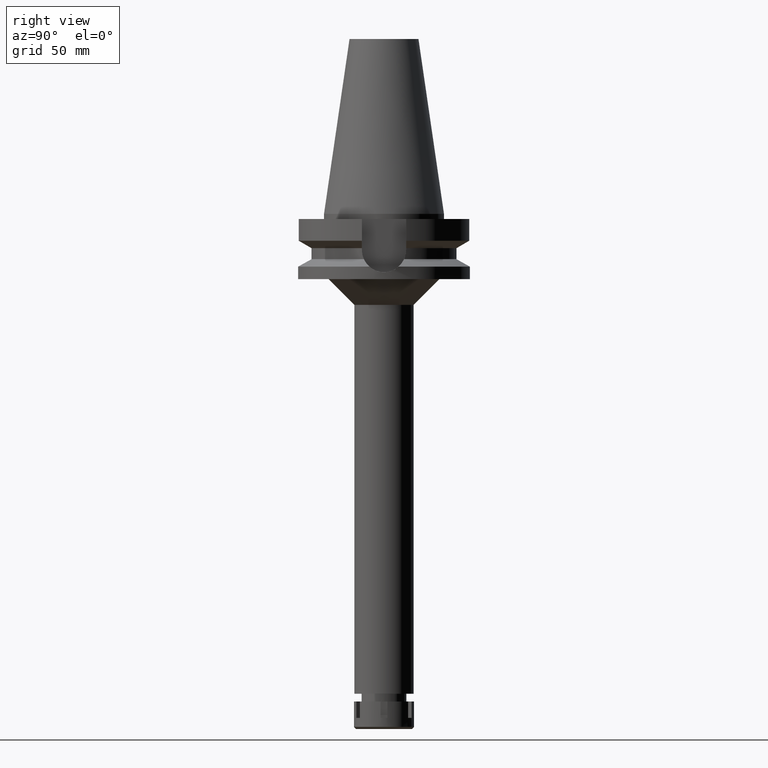
[diagram: clean part render]
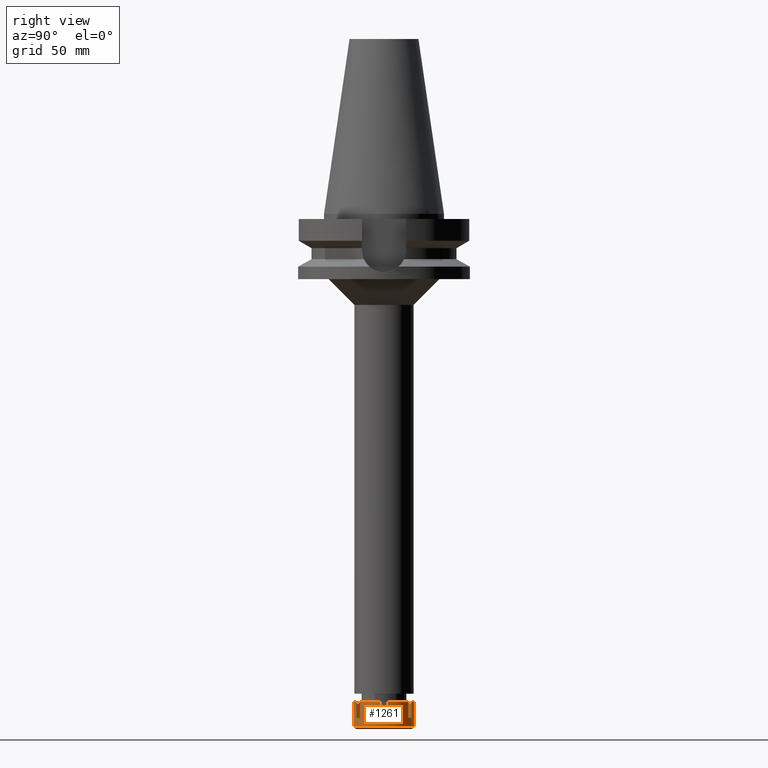
[diagram: same view with one face highlighted and labeled with its STEP entity id]
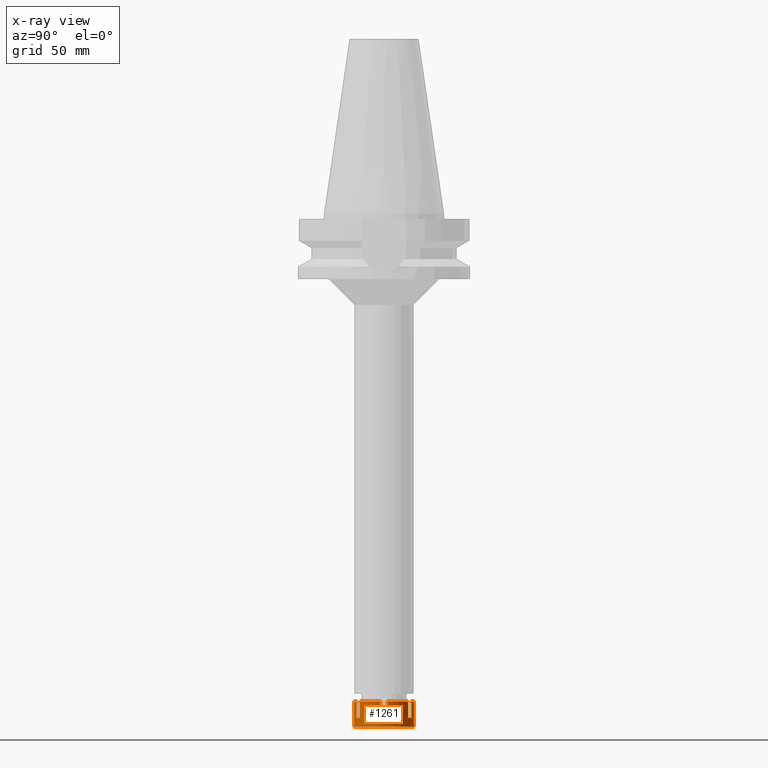
[diagram: x-ray of the same camera — body ghosted, the highlighted face saturated]
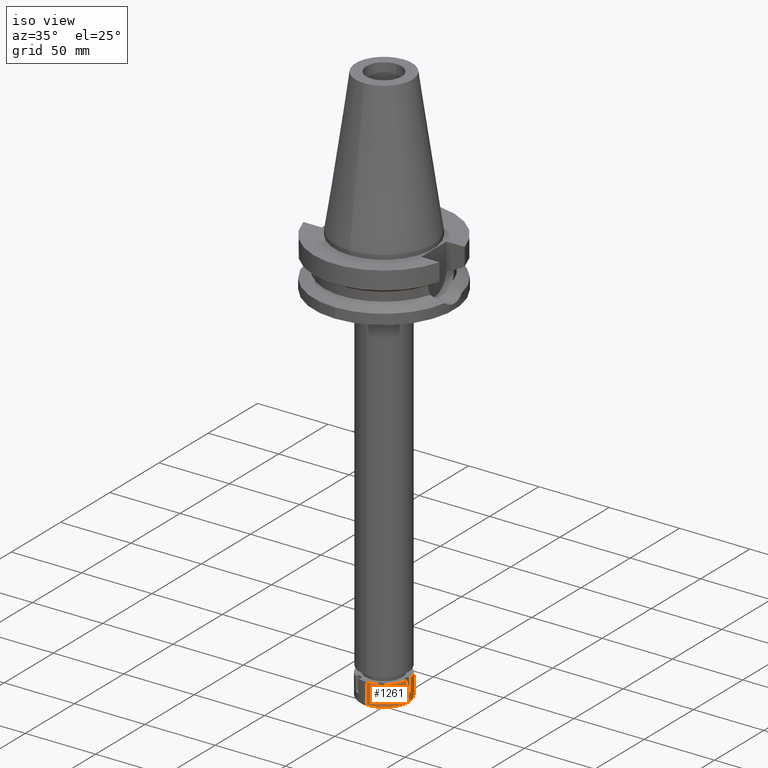
[diagram: same view with one face highlighted and labeled with its STEP entity id]
A machine part, right view. The second image highlights one B-rep face of the part: STEP entity #1261.
The next image is the same camera in x-ray: the body ghosted, the highlighted face saturated — about 0% of this face is hidden behind the body in this view.
A second angle (iso view) of the same face is appended — the face is thin or edge-on in the first view.
In plain terms, the highlighted cylindrical surface (edge-blend (fillet) strip) has radius 17.5 mm, axis along (0, 0, -1).
Its self-contained STEP definition (entity closure, byte-faithful):
#65 = DIRECTION ( 'NONE',  ( 0.0000000000000000000, 0.0000000000000000000, 1.000000000000000000 ) ) ;
#83 = VECTOR ( 'NONE', #1196, 1000.000000000000000 ) ;
#122 = CARTESIAN_POINT ( 'NONE',  ( 17.38533865071000051, 2.000000000000000000, -9.500000000000000000 ) ) ;
#145 = EDGE_CURVE ( 'NONE', #1446, #2276, #2127, .T. ) ;
#212 = DIRECTION ( 'NONE',  ( 0.0000000000000000000, 0.0000000000000000000, -1.000000000000000000 ) ) ;
#228 = VECTOR ( 'NONE', #855, 1000.000000000000000 ) ;
#230 = CYLINDRICAL_SURFACE ( 'NONE', #322, 17.50000000000000000 ) ;
#265 = VERTEX_POINT ( 'NONE', #797 ) ;
#270 = DIRECTION ( 'NONE',  ( 0.0000000000000000000, 0.0000000000000000000, -1.000000000000000000 ) ) ;
#288 = DIRECTION ( 'NONE',  ( 0.0000000000000000000, -1.000000000000000000, 0.0000000000000000000 ) ) ;
#296 = CARTESIAN_POINT ( 'NONE',  ( 10.42472013293000010, -14.05614492490999901, -9.500000000000000000 ) ) ;
#316 = DIRECTION ( 'NONE',  ( 0.9934479228979277154, 0.1142857142857031660, 0.0000000000000000000 ) ) ;
#317 = VECTOR ( 'NONE', #2698, 1000.000000000000000 ) ;
#322 = AXIS2_PLACEMENT_3D ( 'NONE', #2435, #1900, #860 ) ;
#329 = CARTESIAN_POINT ( 'NONE',  ( 17.38533865071000051, -2.000000000000000000, 0.0000000000000000000 ) ) ;
#388 = CARTESIAN_POINT ( 'NONE',  ( 0.0000000000000000000, 0.0000000000000000000, 0.0000000000000000000 ) ) ;
#417 = CARTESIAN_POINT ( 'NONE',  ( 17.38533865071000051, 2.000000000000000000, 0.0000000000000000000 ) ) ;
#443 = AXIS2_PLACEMENT_3D ( 'NONE', #1075, #2671, #1338 ) ;
#481 = EDGE_CURVE ( 'NONE', #835, #752, #1650, .T. ) ;
#486 = CIRCLE ( 'NONE', #3385, 17.50000000000000711 ) ;
#494 = CIRCLE ( 'NONE', #1064, 17.50000000000000355 ) ;
#495 = EDGE_CURVE ( 'NONE', #2144, #3036, #486, .T. ) ;
#530 = ORIENTED_EDGE ( 'NONE', *, *, #1888, .T. ) ;
#535 = ORIENTED_EDGE ( 'NONE', *, *, #495, .T. ) ;
#545 = VECTOR ( 'NONE', #2387, 1000.000000000000000 ) ;
#595 = DIRECTION ( 'NONE',  ( 0.3977496295877935850, -0.9174939957093850573, 0.0000000000000000000 ) ) ;
#597 = CARTESIAN_POINT ( 'NONE',  ( 0.0000000000000000000, -17.50000000000000000, 0.0000000000000000000 ) ) ;
#618 = DIRECTION ( 'NONE',  ( 0.0000000000000000000, 0.0000000000000000000, -1.000000000000000000 ) ) ;
#646 = VERTEX_POINT ( 'NONE', #941 ) ;
#653 = EDGE_CURVE ( 'NONE', #646, #1740, #2075, .T. ) ;
#669 = LINE ( 'NONE', #3119, #2919 ) ;
#705 = EDGE_CURVE ( 'NONE', #1401, #3036, #3196, .T. ) ;
#752 = VERTEX_POINT ( 'NONE', #973 ) ;
#762 = CARTESIAN_POINT ( 'NONE',  ( 6.960618517789000315, 16.05614492491000078, -9.500000000000000000 ) ) ;
#784 = EDGE_CURVE ( 'NONE', #1972, #2428, #3062, .T. ) ;
#797 = CARTESIAN_POINT ( 'NONE',  ( 6.960618517787000137, -16.05614492491000078, 0.0000000000000000000 ) ) ;
#835 = VERTEX_POINT ( 'NONE', #1377 ) ;
#855 = DIRECTION ( 'NONE',  ( 0.0000000000000000000, 0.0000000000000000000, -1.000000000000000000 ) ) ;
#859 = ORIENTED_EDGE ( 'NONE', *, *, #1083, .T. ) ;
#860 = DIRECTION ( 'NONE',  ( 0.0000000000000000000, -1.000000000000000000, 0.0000000000000000000 ) ) ;
#877 = ORIENTED_EDGE ( 'NONE', *, *, #145, .F. ) ;
#917 = DIRECTION ( 'NONE',  ( 0.0000000000000000000, 0.0000000000000000000, -1.000000000000000000 ) ) ;
#920 = DIRECTION ( 'NONE',  ( 0.0000000000000000000, 1.000000000000000000, 0.0000000000000000000 ) ) ;
#941 = CARTESIAN_POINT ( 'NONE',  ( 10.42472013293000010, 14.05614492490999901, 0.0000000000000000000 ) ) ;
#954 = VERTEX_POINT ( 'NONE', #2882 ) ;
#973 = CARTESIAN_POINT ( 'NONE',  ( 17.38533865071000051, -2.000000000000000000, -9.500000000000000000 ) ) ;
#998 = CIRCLE ( 'NONE', #2393, 17.50000000000000355 ) ;
#1064 = AXIS2_PLACEMENT_3D ( 'NONE', #2566, #1221, #1728 ) ;
#1075 = CARTESIAN_POINT ( 'NONE',  ( 0.0000000000000000000, 0.0000000000000000000, -9.500000000000000000 ) ) ;
#1083 = EDGE_CURVE ( 'NONE', #1401, #2296, #998, .T. ) ;
#1107 = CIRCLE ( 'NONE', #3147, 17.50000000000000000 ) ;
#1175 = CARTESIAN_POINT ( 'NONE',  ( 0.0000000000000000000, 0.0000000000000000000, -9.500000000000000000 ) ) ;
#1192 = DIRECTION ( 'NONE',  ( 0.0000000000000000000, 0.0000000000000000000, -1.000000000000000000 ) ) ;
#1196 = DIRECTION ( 'NONE',  ( 0.0000000000000000000, -1.121909582779000024E-14, -1.000000000000000000 ) ) ;
#1221 = DIRECTION ( 'NONE',  ( 0.0000000000000000000, 0.0000000000000000000, -1.000000000000000000 ) ) ;
#1241 = CIRCLE ( 'NONE', #1942, 17.49999999999999645 ) ;
#1261 = ADVANCED_FACE ( 'NONE', ( #2710 ), #230, .T. ) ;
#1338 = DIRECTION ( 'NONE',  ( 0.3977496295879985877, 0.9174939957092961285, 0.0000000000000000000 ) ) ;
#1351 = EDGE_CURVE ( 'NONE', #2144, #752, #2801, .T. ) ;
#1377 = CARTESIAN_POINT ( 'NONE',  ( 17.38533865071000051, 2.000000000000000000, -9.500000000000000000 ) ) ;
#1401 = VERTEX_POINT ( 'NONE', #296 ) ;
#1435 = DIRECTION ( 'NONE',  ( 0.0000000000000000000, 0.0000000000000000000, -1.000000000000000000 ) ) ;
#1446 = VERTEX_POINT ( 'NONE', #2192 ) ;
#1557 = ORIENTED_EDGE ( 'NONE', *, *, #2976, .T. ) ;
#1642 = ORIENTED_EDGE ( 'NONE', *, *, #2613, .T. ) ;
#1650 = CIRCLE ( 'NONE', #2625, 17.50000000000000711 ) ;
#1691 = CARTESIAN_POINT ( 'NONE',  ( 0.0000000000000000000, 17.50000000000000000, 0.0000000000000000000 ) ) ;
#1716 = CARTESIAN_POINT ( 'NONE',  ( 0.0000000000000000000, 0.0000000000000000000, 0.0000000000000000000 ) ) ;
#1728 = DIRECTION ( 'NONE',  ( 0.5956982933099820299, 0.8032082814236758406, 0.0000000000000000000 ) ) ;
#1740 = VERTEX_POINT ( 'NONE', #3040 ) ;
#1791 = EDGE_CURVE ( 'NONE', #265, #1972, #1241, .T. ) ;
#1794 = CARTESIAN_POINT ( 'NONE',  ( 17.38533865071000051, -2.000000000000000000, 0.0000000000000000000 ) ) ;
#1845 = ORIENTED_EDGE ( 'NONE', *, *, #481, .T. ) ;
#1850 = EDGE_CURVE ( 'NONE', #835, #3204, #3021, .T. ) ;
#1879 = VECTOR ( 'NONE', #1435, 1000.000000000000000 ) ;
#1888 = EDGE_CURVE ( 'NONE', #646, #3204, #494, .T. ) ;
#1892 = EDGE_CURVE ( 'NONE', #265, #2296, #669, .T. ) ;
#1893 = ORIENTED_EDGE ( 'NONE', *, *, #653, .F. ) ;
#1900 = DIRECTION ( 'NONE',  ( 0.0000000000000000000, 0.0000000000000000000, -1.000000000000000000 ) ) ;
#1942 = AXIS2_PLACEMENT_3D ( 'NONE', #2206, #270, #595 ) ;
#1972 = VERTEX_POINT ( 'NONE', #2583 ) ;
#2075 = LINE ( 'NONE', #2574, #83 ) ;
#2127 = LINE ( 'NONE', #762, #317 ) ;
#2129 = ORIENTED_EDGE ( 'NONE', *, *, #1791, .T. ) ;
#2144 = VERTEX_POINT ( 'NONE', #1794 ) ;
#2192 = CARTESIAN_POINT ( 'NONE',  ( 6.960618517790000404, 16.05614492491000078, -9.500000000000000000 ) ) ;
#2206 = CARTESIAN_POINT ( 'NONE',  ( 0.0000000000000000000, 0.0000000000000000000, 0.0000000000000000000 ) ) ;
#2230 = ORIENTED_EDGE ( 'NONE', *, *, #705, .F. ) ;
#2232 = DIRECTION ( 'NONE',  ( 0.0000000000000000000, 0.0000000000000000000, -1.000000000000000000 ) ) ;
#2256 = LINE ( 'NONE', #3294, #228 ) ;
#2262 = CARTESIAN_POINT ( 'NONE',  ( 0.0000000000000000000, 0.0000000000000000000, -14.75000000000000000 ) ) ;
#2276 = VERTEX_POINT ( 'NONE', #3349 ) ;
#2290 = VECTOR ( 'NONE', #3408, 1000.000000000000000 ) ;
#2296 = VERTEX_POINT ( 'NONE', #2797 ) ;
#2375 = ORIENTED_EDGE ( 'NONE', *, *, #1850, .F. ) ;
#2387 = DIRECTION ( 'NONE',  ( 0.0000000000000000000, 0.0000000000000000000, 1.000000000000000000 ) ) ;
#2393 = AXIS2_PLACEMENT_3D ( 'NONE', #3519, #212, #2419 ) ;
#2419 = DIRECTION ( 'NONE',  ( 0.5956982933103188715, -0.8032082814234259294, 0.0000000000000000000 ) ) ;
#2428 = VERTEX_POINT ( 'NONE', #2570 ) ;
#2435 = CARTESIAN_POINT ( 'NONE',  ( 0.0000000000000000000, 0.0000000000000000000, 0.0000000000000000000 ) ) ;
#2480 = EDGE_CURVE ( 'NONE', #3033, #2276, #2984, .T. ) ;
#2494 = ORIENTED_EDGE ( 'NONE', *, *, #1351, .F. ) ;
#2566 = CARTESIAN_POINT ( 'NONE',  ( 0.0000000000000000000, 0.0000000000000000000, 0.0000000000000000000 ) ) ;
#2570 = CARTESIAN_POINT ( 'NONE',  ( 0.0000000000000000000, -17.50000000000000000, -14.75000000000000000 ) ) ;
#2574 = CARTESIAN_POINT ( 'NONE',  ( 10.42472013293000010, 14.05614492490999901, 0.0000000000000000000 ) ) ;
#2583 = CARTESIAN_POINT ( 'NONE',  ( 0.0000000000000000000, -17.50000000000000000, 0.0000000000000000000 ) ) ;
#2613 = EDGE_CURVE ( 'NONE', #1446, #1740, #3108, .T. ) ;
#2625 = AXIS2_PLACEMENT_3D ( 'NONE', #1175, #3159, #316 ) ;
#2637 = EDGE_LOOP ( 'NONE', ( #1893, #530, #2375, #1845, #2494, #535, #2230, #859, #2690, #2129, #2880, #1557, #2906, #3356, #877, #1642 ) ) ;
#2671 = DIRECTION ( 'NONE',  ( 0.0000000000000000000, 0.0000000000000000000, -1.000000000000000000 ) ) ;
#2690 = ORIENTED_EDGE ( 'NONE', *, *, #1892, .F. ) ;
#2698 = DIRECTION ( 'NONE',  ( 0.0000000000000000000, 0.0000000000000000000, 1.000000000000000000 ) ) ;
#2710 = FACE_OUTER_BOUND ( 'NONE', #2637, .T. ) ;
#2714 = CARTESIAN_POINT ( 'NONE',  ( 10.42472013293000010, -14.05614492490999901, -9.500000000000000000 ) ) ;
#2783 = CARTESIAN_POINT ( 'NONE',  ( 10.42472013293000010, -14.05614492490999901, 0.0000000000000000000 ) ) ;
#2797 = CARTESIAN_POINT ( 'NONE',  ( 6.960618517787000137, -16.05614492491000078, -9.500000000000000000 ) ) ;
#2801 = LINE ( 'NONE', #329, #1879 ) ;
#2829 = DIRECTION ( 'NONE',  ( 0.9934479228979277154, -0.1142857142857031660, 0.0000000000000000000 ) ) ;
#2880 = ORIENTED_EDGE ( 'NONE', *, *, #784, .T. ) ;
#2882 = CARTESIAN_POINT ( 'NONE',  ( 0.0000000000000000000, 17.50000000000000000, -14.75000000000000000 ) ) ;
#2906 = ORIENTED_EDGE ( 'NONE', *, *, #3401, .F. ) ;
#2919 = VECTOR ( 'NONE', #917, 1000.000000000000000 ) ;
#2976 = EDGE_CURVE ( 'NONE', #2428, #954, #1107, .T. ) ;
#2984 = CIRCLE ( 'NONE', #3105, 17.50000000000000000 ) ;
#3021 = LINE ( 'NONE', #122, #2290 ) ;
#3033 = VERTEX_POINT ( 'NONE', #1691 ) ;
#3036 = VERTEX_POINT ( 'NONE', #2783 ) ;
#3040 = CARTESIAN_POINT ( 'NONE',  ( 10.42472013291999922, 14.05614492490999901, -9.500000000000000000 ) ) ;
#3062 = LINE ( 'NONE', #597, #3440 ) ;
#3105 = AXIS2_PLACEMENT_3D ( 'NONE', #388, #1192, #920 ) ;
#3108 = CIRCLE ( 'NONE', #443, 17.49999999999999645 ) ;
#3119 = CARTESIAN_POINT ( 'NONE',  ( 6.960618517787000137, -16.05614492491000078, 0.0000000000000000000 ) ) ;
#3147 = AXIS2_PLACEMENT_3D ( 'NONE', #2262, #65, #288 ) ;
#3159 = DIRECTION ( 'NONE',  ( 0.0000000000000000000, 0.0000000000000000000, -1.000000000000000000 ) ) ;
#3196 = LINE ( 'NONE', #2714, #545 ) ;
#3204 = VERTEX_POINT ( 'NONE', #417 ) ;
#3294 = CARTESIAN_POINT ( 'NONE',  ( 0.0000000000000000000, 17.50000000000000000, 0.0000000000000000000 ) ) ;
#3349 = CARTESIAN_POINT ( 'NONE',  ( 6.960618517789000315, 16.05614492491000078, 0.0000000000000000000 ) ) ;
#3356 = ORIENTED_EDGE ( 'NONE', *, *, #2480, .T. ) ;
#3385 = AXIS2_PLACEMENT_3D ( 'NONE', #1716, #618, #2829 ) ;
#3401 = EDGE_CURVE ( 'NONE', #3033, #954, #2256, .T. ) ;
#3408 = DIRECTION ( 'NONE',  ( 0.0000000000000000000, 0.0000000000000000000, 1.000000000000000000 ) ) ;
#3440 = VECTOR ( 'NONE', #2232, 1000.000000000000000 ) ;
#3519 = CARTESIAN_POINT ( 'NONE',  ( 0.0000000000000000000, 0.0000000000000000000, -9.500000000000000000 ) ) ;